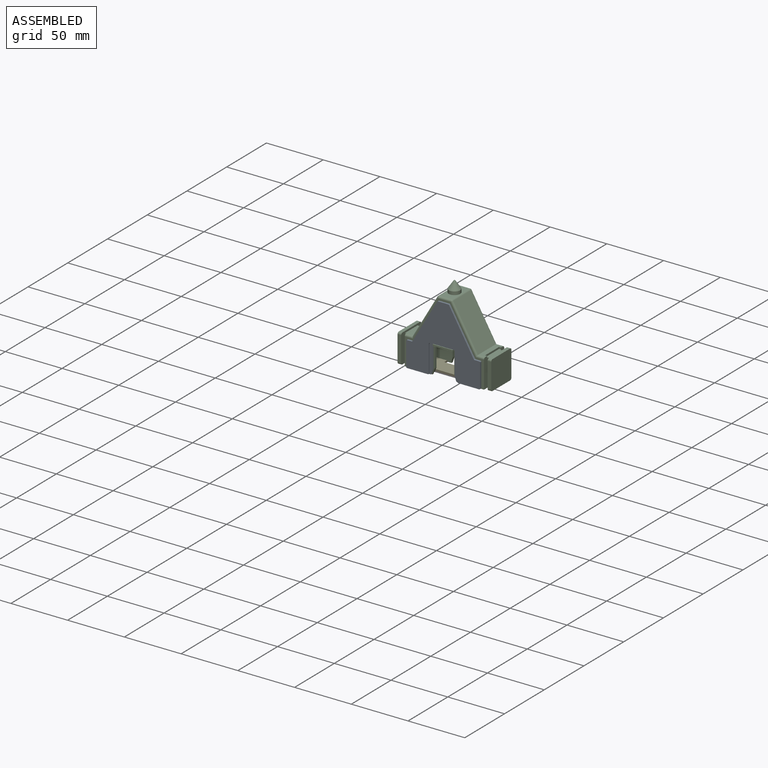
[diagram: assembled view]
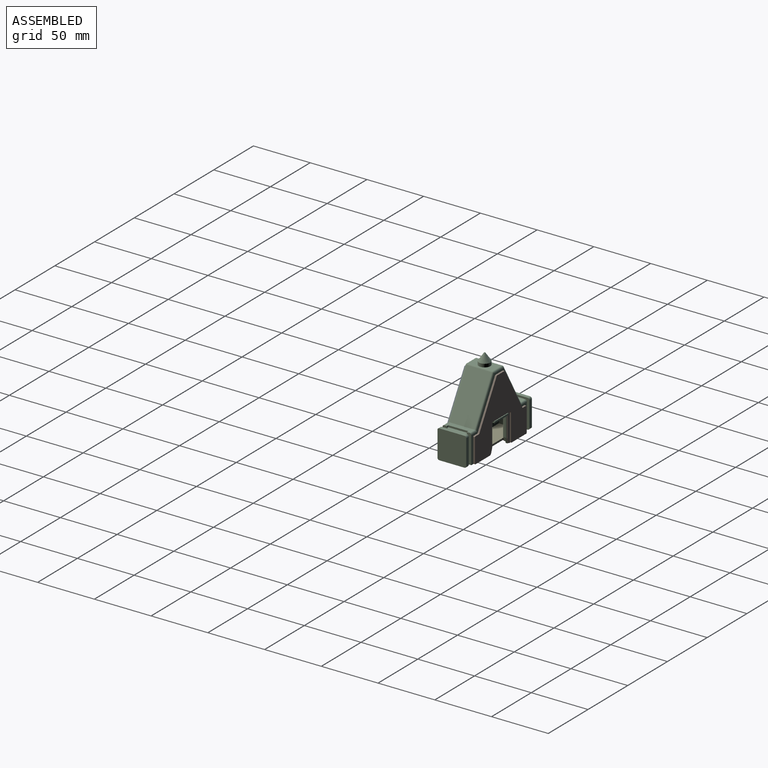
[diagram: assembled view, second angle]
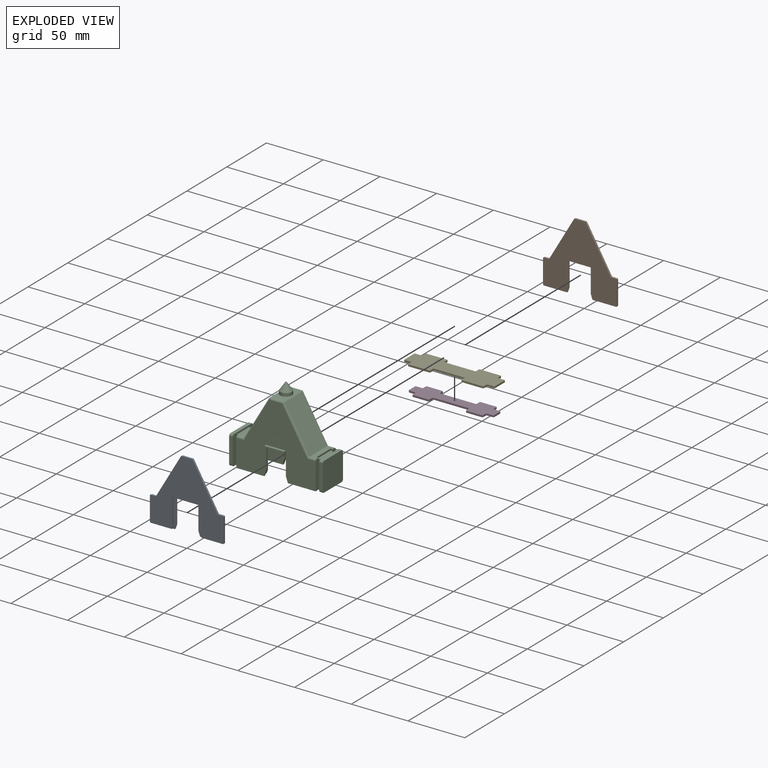
[diagram: exploded view]
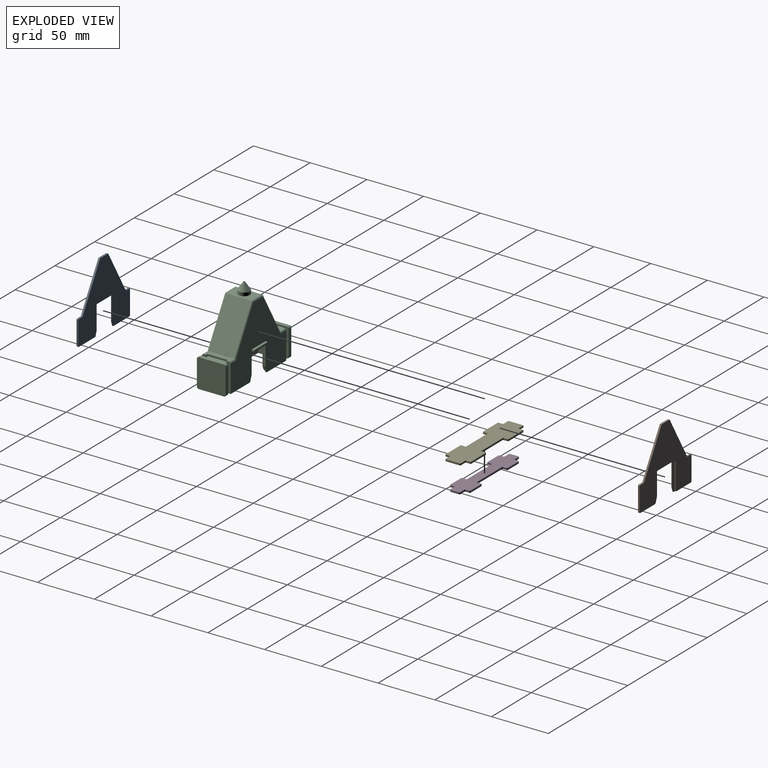
[diagram: exploded view, second angle]
ASSEMBLY  parts=5 mates=4
PART A: 38 faces, bbox 65.1x1.6x60.4 mm
  f0: plane 20.82x1.59mm, normal (-1,0,0), area 13.2mm2, adj f4,f14,f15,f20,f21,f26
  f1: plane 3.82x1.34mm, normal (-0.94,0,-0.33), area 2.6mm2, adj f15,f20,f26,f27
  f2: plane 20.2x1.59mm, normal (0,0,-1), area 30.3mm2, adj f14,f15,f20,f25,f27,f28
  f3: plane 3.82x1.34mm, normal (0.94,0,-0.33), area 2.6mm2, adj f15,f19,f36,f37
  f4: plane 18.99x1.59mm, normal (0,0,-1), area 30.1mm2, adj f0,f13,f14,f15
  f5: plane 20.76x1.59mm, normal (1,0,0), area 33mm2, adj f14,f15,f28,f29
  f6: plane 4.13x1.59mm, normal (0,0,1), area 6.6mm2, adj f14,f15,f29,f30
  f7: plane 37.34x21.78mm, normal (0.86,0,0.5), area 68.6mm2, adj f14,f15,f30,f31
  f8: plane 9.13x1.59mm, normal (0,0,1), area 14.5mm2, adj f14,f15,f31,f32
  f9: plane 37.34x21.78mm, normal (-0.86,0,0.5), area 68.6mm2, adj f14,f15,f32,f33
  f10: plane 4.13x1.59mm, normal (0,0,1), area 6.6mm2, adj f14,f15,f33,f34
  f11: plane 20.76x1.59mm, normal (-1,0,0), area 33mm2, adj f14,f15,f34,f35
  f12: plane 20.21x1.59mm, normal (0,0,-1), area 30.3mm2, adj f14,f15,f19,f24,f35,f36
  f13: plane 20.82x1.59mm, normal (1,0,0), area 13.2mm2, adj f4,f14,f15,f18,f19,f37
  f14: plane 65.12x60.39mm, normal (0,-1,0), area 2034.5mm2, adj f0,f2,f4,f5,f6,f7,f8,f9
  f15: plane 65.12x60.39mm, normal (0,1,0), area 2189.4mm2, adj f0,f1,f2,f3,f4,f5,f6,f7
  f16: cylinder r=1.59mm len=1.59mm, axis (0,-1,0), area 2.4mm2, adj f14,f17,f18,f19
  f17: plane 23.03x0.95mm, normal (1,0,0), area 21.9mm2, adj f14,f16,f19,f24
  f18: plane 1.63x0.95mm, normal (0,0,-1), area 1.5mm2, adj f13,f14,f16,f19
  f19: plane 25.38x3.98mm, normal (0,-1,0), area 77.6mm2, adj f3,f12,f13,f16,f17,f18,f24,f36
  f20: plane 25.38x3.96mm, normal (0,-1,0), area 77.3mm2, adj f0,f1,f2,f21,f22,f23,f25,f26
  f21: plane 1.61x0.95mm, normal (0,0,-1), area 1.5mm2, adj f0,f14,f20,f23
  f22: plane 23.03x0.95mm, normal (-1,0,0), area 21.9mm2, adj f14,f20,f23,f25
  f23: cylinder r=1.59mm len=1.59mm, axis (0,1,0), area 2.4mm2, adj f14,f20,f21,f22
  f24: cylinder r=0.76mm len=0.95mm, axis (0,-1,0), area 1.1mm2, adj f12,f14,f17,f19
  f25: cylinder r=0.76mm len=0.95mm, axis (0,1,0), area 1.1mm2, adj f2,f14,f20,f22
  f26: cylinder r=0.76mm len=0.64mm, axis (0,1,0), area 0.2mm2, adj f0,f1,f15,f20
  f27: cylinder r=0.76mm len=0.72mm, axis (0,1,0), area 0.6mm2, adj f1,f2,f15,f20
  f28: cylinder r=0.76mm len=1.59mm, axis (0,1,0), area 1.9mm2, adj f2,f5,f14,f15
  f29: cylinder r=0.76mm len=1.59mm, axis (0,1,0), area 1.9mm2, adj f5,f6,f14,f15
  f30: cylinder r=0.76mm len=1.59mm, axis (0,-1,0), area 1.3mm2, adj f6,f7,f14,f15
  f31: cylinder r=0.76mm len=1.59mm, axis (0,1,0), area 1.3mm2, adj f7,f8,f14,f15
  f32: cylinder r=0.76mm len=1.59mm, axis (0,1,0), area 1.3mm2, adj f8,f9,f14,f15
  f33: cylinder r=0.76mm len=1.59mm, axis (0,-1,0), area 1.3mm2, adj f9,f10,f14,f15
  f34: cylinder r=0.76mm len=1.59mm, axis (0,1,0), area 1.9mm2, adj f10,f11,f14,f15
  f35: cylinder r=0.76mm len=1.59mm, axis (0,1,0), area 1.9mm2, adj f11,f12,f14,f15
  f36: cylinder r=0.76mm len=0.72mm, axis (0,1,0), area 0.6mm2, adj f3,f12,f15,f19
  f37: cylinder r=0.76mm len=0.64mm, axis (0,1,0), area 0.2mm2, adj f3,f13,f15,f19
PART B: same geometry as A
PART C: 117 faces, bbox 82.6x29.8x73 mm
  f0: plane 25.4x4.76mm, normal (1,0,0), area 119mm2, adj f1,f4,f21,f36,f57,f85,f112
  f1: plane 22.23x6.35mm, normal (0,0,1), area 109.8mm2, adj f0,f29,f37,f81,f85,f112,f113,f114
  f2: plane 25.4x4.76mm, normal (-1,0,0), area 119mm2, adj f3,f19,f20,f32,f58,f83,f109
  f3: plane 22.23x6.35mm, normal (0,0,1), area 109.7mm2, adj f2,f26,f33,f83,f96,f109,f110,f111
  f4: plane 69.85x61.91mm, normal (0,-1,0), area 2471.9mm2, adj f0,f20,f21,f33,f48,f49,f60,f62
  f5: plane 64.77x59.37mm, normal (0,1,0), area 2137.9mm2, adj f11,f13,f18,f40,f41,f42,f43,f44
  f6: plane 64.77x59.37mm, normal (0,-1,0), area 2137.9mm2, adj f9,f15,f18,f40,f41,f42,f43,f44
  f7: plane 21.27x10.8mm, normal (1,0,0), area 229.6mm2, adj f10,f12,f41,f71
  f8: plane 21.27x10.8mm, normal (-1,0,0), area 229.6mm2, adj f14,f16,f40,f63
  f9: plane 21.27x4.76mm, normal (1,0,0), area 101.3mm2, adj f6,f10,f41,f71
  f10: plane 21.27x6.35mm, normal (0,-1,0), area 135.1mm2, adj f7,f9,f41,f71
  f11: plane 21.27x4.76mm, normal (1,0,0), area 101.3mm2, adj f5,f12,f41,f71
  f12: plane 21.27x6.35mm, normal (0,1,0), area 135.1mm2, adj f7,f11,f41,f71
  f13: plane 21.27x4.76mm, normal (-1,0,0), area 101.3mm2, adj f5,f14,f40,f63
  f14: plane 21.27x6.35mm, normal (0,1,0), area 135.1mm2, adj f8,f13,f40,f63
  f15: plane 21.27x4.76mm, normal (-1,0,0), area 101.3mm2, adj f6,f16,f40,f63
  f16: plane 21.27x6.35mm, normal (0,-1,0), area 135.1mm2, adj f8,f15,f40,f63
  f17: plane 22.23x3.18mm, normal (0,0,1), area 70.6mm2, adj f28,f39,f79,f80
  f18: plane 20.32x3.62mm, normal (0,0,-1), area 73.6mm2, adj f5,f6,f44,f54
  f19: plane 69.85x61.91mm, normal (0,1,0), area 2471.9mm2, adj f2,f20,f21,f37,f46,f47,f59,f61
  f20: plane 30.76x25.4mm, normal (0,0,-1), area 130.8mm2, adj f2,f4,f19,f27,f32,f33,f34,f35
  f21: plane 30.77x25.4mm, normal (0,0,-1), area 128mm2, adj f0,f4,f19,f28,f36,f37,f38,f39
  f22: plane 22.23x3.18mm, normal (0,-1,0), area 70.6mm2, adj f27,f35,f98,f105
  f23: plane 22.23x3.18mm, normal (0,1,0), area 70.6mm2, adj f27,f35,f97,f106
  f24: plane 22.23x3.18mm, normal (0,0,1), area 70.6mm2, adj f27,f35,f97,f98
  f25: plane 22.23x10.88mm, normal (0,0,1), area 160.7mm2, adj f51,f87,f88,f92,f93
  f26: plane 37.31x22.23mm, normal (-0.86,0,0.5), area 960mm2, adj f3,f86,f92,f95
  f27: plane 25.4x25.4mm, normal (-1,0,0), area 643mm2, adj f20,f22,f23,f24,f97,f98,f105,f106
  f28: plane 25.4x25.4mm, normal (1,0,0), area 643mm2, adj f17,f21,f30,f31,f79,f80,f107,f108
  f29: plane 37.31x22.23mm, normal (0.86,0,0.5), area 960mm2, adj f1,f82,f88,f89
  f30: plane 22.23x3.18mm, normal (0,-1,0), area 70.6mm2, adj f28,f39,f79,f108
  f31: plane 22.23x3.18mm, normal (0,1,0), area 70.6mm2, adj f28,f39,f80,f107
  f32: plane 23.81x3.18mm, normal (0,1,0), area 75.6mm2, adj f2,f20,f35,f58
  f33: plane 25.4x4.76mm, normal (-1,0,0), area 119mm2, adj f3,f4,f20,f34,f58,f96,f110
  f34: plane 23.81x3.18mm, normal (0,-1,0), area 75.6mm2, adj f20,f33,f35,f58
  f35: plane 25.4x25.4mm, normal (1,0,0), area 265mm2, adj f20,f22,f23,f24,f32,f34,f58,f97
  f36: plane 23.81x3.18mm, normal (0,-1,0), area 75.6mm2, adj f0,f21,f39,f57
  f37: plane 25.4x4.76mm, normal (1,0,0), area 119mm2, adj f1,f19,f21,f38,f57,f81,f113
  f38: plane 23.81x3.18mm, normal (0,1,0), area 75.6mm2, adj f21,f37,f39,f57
  f39: plane 25.4x25.4mm, normal (-1,0,0), area 265mm2, adj f17,f21,f30,f31,f36,f38,f57,f79
  f40: plane 20.32x11.62mm, normal (0,0,-1), area 175.6mm2, adj f5,f6,f8,f13,f14,f15,f16,f44
  f41: plane 20.32x11.62mm, normal (0,0,-1), area 175.6mm2, adj f5,f6,f7,f9,f10,f11,f12,f43
  f42: plane 20.32x3.62mm, normal (0,0,-1), area 73.6mm2, adj f5,f6,f43,f55
  f43: plane 38.1x22.23mm, normal (0.86,0,-0.5), area 896.3mm2, adj f5,f6,f41,f42
  f44: plane 38.1x22.23mm, normal (-0.86,0,-0.5), area 896.3mm2, adj f5,f6,f18,f40
  f45: plane 17.46x4.76mm, normal (0,0,-1), area 83.2mm2, adj f6,f46,f47,f102,f103,f116
  f46: plane 18.73x2.54mm, normal (-1,0,0), area 47.6mm2, adj f6,f19,f45,f61
  f47: plane 18.73x2.54mm, normal (1,0,0), area 47.6mm2, adj f6,f19,f45,f59
  f48: plane 18.73x2.54mm, normal (1,0,0), area 47.6mm2, adj f4,f5,f50,f60
  f49: plane 18.73x2.54mm, normal (-1,0,0), area 47.6mm2, adj f4,f5,f50,f62
  f50: plane 17.46x4.76mm, normal (0,0,-1), area 83.2mm2, adj f5,f48,f49,f99,f100,f115
  f51: cylinder r=5.08mm len=10.16mm, axis (0,0,1), area 91.9mm2, adj f25,f52
  f52: cone r=0.51mm half-angle=34.5deg, axis (0,0,-1), area 141.6mm2, adj f51,f53
  f53: plane 1.02x1.02mm, normal (0,0,1), area 0.8mm2, adj f52
  f54: plane 34.6x20.32mm, normal (1,0,-0.02), area 703.1mm2, adj f5,f6,f18,f56
  f55: plane 34.6x20.32mm, normal (-1,0,-0.02), area 703.1mm2, adj f5,f6,f42,f56
  f56: plane 20.32x1.33mm, normal (0,0,-1), area 27.1mm2, adj f5,f6,f54,f55
  f57: plane 17.65x4.95mm, normal (0,0,1), area 81.8mm2, adj f0,f36,f37,f38,f39,f112,f113,f114
  f58: plane 17.68x4.95mm, normal (0,0,1), area 81.8mm2, adj f2,f32,f33,f34,f35,f109,f110,f111
  f59: plane 5.08x2.54mm, normal (0.94,0,-0.33), area 11.9mm2, adj f6,f19,f20,f47,f71,f78
  f60: plane 5.08x2.54mm, normal (0.94,0,-0.33), area 11.5mm2, adj f4,f5,f20,f48,f71,f72
  f61: plane 5.08x2.54mm, normal (-0.94,0,-0.33), area 11.7mm2, adj f6,f19,f21,f46,f63,f65
  f62: plane 5.08x2.54mm, normal (-0.94,0,-0.33), area 11.5mm2, adj f4,f5,f21,f49,f63,f64
  f63: plane 30.04x22.74mm, normal (0,0,-1), area 101.4mm2, adj f5,f6,f8,f13,f14,f15,f16,f61
  f64: plane 23.71x1.59mm, normal (0,1,0), area 37.2mm2, adj f21,f62,f63,f66
  f65: plane 23.71x1.59mm, normal (0,-1,0), area 37.2mm2, adj f21,f61,f63,f70
  f66: plane 4.55x1.59mm, normal (-1,0,0), area 7.2mm2, adj f21,f63,f64,f67
  f67: plane 6.33x1.59mm, normal (0,1,0), area 10mm2, adj f21,f63,f66,f68
  f68: plane 13.69x1.59mm, normal (-1,0,0), area 21.7mm2, adj f21,f63,f67,f69
  f69: plane 6.33x1.59mm, normal (0,-1,0), area 10mm2, adj f21,f63,f68,f70
  f70: plane 4.51x1.59mm, normal (-1,0,0), area 7.2mm2, adj f21,f63,f65,f69
  f71: plane 29.99x22.64mm, normal (0,0,-1), area 98.5mm2, adj f5,f6,f7,f9,f10,f11,f12,f59
  f72: plane 23.92x1.59mm, normal (0,1,0), area 37.5mm2, adj f20,f60,f71,f73
  f73: plane 4.55x1.59mm, normal (1,0,0), area 7.2mm2, adj f20,f71,f72,f74
  f74: plane 6.08x1.59mm, normal (0,1,0), area 9.6mm2, adj f20,f71,f73,f75
  f75: plane 13.69x1.59mm, normal (1,0,0), area 21.7mm2, adj f20,f71,f74,f76
  f76: plane 6.52x1.59mm, normal (0,-1,0), area 10.4mm2, adj f20,f71,f75,f77
  f77: plane 4.41x1.59mm, normal (1,0,0), area 7mm2, adj f20,f71,f76,f78
  f78: plane 23.47x1.59mm, normal (0,-1,0), area 36.8mm2, adj f20,f59,f71,f77
  f79: cylinder r=1.59mm len=3.18mm, axis (1,0,0), area 7.9mm2, adj f17,f28,f30,f39
  f80: cylinder r=1.59mm len=3.18mm, axis (-1,0,0), area 7.9mm2, adj f17,f28,f31,f39
  f81: cylinder r=1.59mm len=7.26mm, axis (-1,0,0), area 16.7mm2, adj f1,f19,f37,f82
  f82: cylinder r=1.59mm len=38.9mm, axis (-0.5,0,0.86), area 108.5mm2, adj f19,f29,f81,f84
  f83: cylinder r=1.59mm len=7.26mm, axis (-1,0,0), area 16.7mm2, adj f2,f3,f19,f86
  f84: sphere r=1.59mm, area 2.6mm2, adj f82,f87,f88
  f85: cylinder r=1.59mm len=7.26mm, axis (1,0,0), area 16.7mm2, adj f0,f1,f4,f89
  f86: cylinder r=1.59mm len=38.9mm, axis (-0.5,0,-0.86), area 108.5mm2, adj f19,f26,f83,f90
  f87: cylinder r=1.59mm len=10.88mm, axis (-1,0,0), area 27.1mm2, adj f19,f25,f84,f90
  f88: cylinder r=1.59mm len=22.23mm, axis (0,1,0), area 36.8mm2, adj f25,f29,f84,f91
  f89: cylinder r=1.59mm len=38.9mm, axis (0.5,0,-0.86), area 108.5mm2, adj f4,f29,f85,f91
  f90: sphere r=1.59mm, area 2.6mm2, adj f86,f87,f92
  f91: sphere r=1.59mm, area 2.6mm2, adj f88,f89,f93
  f92: cylinder r=1.59mm len=22.23mm, axis (0,1,0), area 36.8mm2, adj f25,f26,f90,f94
  f93: cylinder r=1.59mm len=10.88mm, axis (1,0,0), area 27.1mm2, adj f4,f25,f91,f94
  f94: sphere r=1.59mm, area 2.6mm2, adj f92,f93,f95
  f95: cylinder r=1.59mm len=38.9mm, axis (0.5,0,0.86), area 108.5mm2, adj f4,f26,f94,f96
  f96: cylinder r=1.59mm len=7.26mm, axis (1,0,0), area 16.7mm2, adj f3,f4,f33,f95
  f97: cylinder r=1.59mm len=3.18mm, axis (-1,0,0), area 7.9mm2, adj f23,f24,f27,f35
  f98: cylinder r=1.59mm len=3.18mm, axis (1,0,0), area 7.9mm2, adj f22,f24,f27,f35
  f99: plane 2.22x1.59mm, normal (-1,0,0), area 3.5mm2, adj f4,f50,f101,f115
  f100: plane 2.22x1.59mm, normal (1,0,0), area 3.5mm2, adj f4,f50,f101,f115
  f101: plane 17.46x2.22mm, normal (0,0,1), area 38.8mm2, adj f4,f99,f100,f115
  f102: plane 2.22x1.59mm, normal (1,0,0), area 3.5mm2, adj f19,f45,f104,f116
  f103: plane 2.22x1.59mm, normal (-1,0,0), area 3.5mm2, adj f19,f45,f104,f116
  f104: plane 17.46x2.22mm, normal (0,0,1), area 38.8mm2, adj f19,f102,f103,f116
  f105: cylinder r=1.59mm len=3.18mm, axis (-1,0,0), area 7.9mm2, adj f20,f22,f27,f35
  f106: cylinder r=1.59mm len=3.18mm, axis (1,0,0), area 7.9mm2, adj f20,f23,f27,f35
  f107: cylinder r=1.59mm len=3.18mm, axis (1,0,0), area 7.9mm2, adj f21,f28,f31,f39
  f108: cylinder r=1.59mm len=3.18mm, axis (-1,0,0), area 7.9mm2, adj f21,f28,f30,f39
  f109: plane 1.78x1.59mm, normal (0,-1,0), area 2.8mm2, adj f2,f3,f58,f111
  f110: plane 1.78x1.59mm, normal (0,1,0), area 2.8mm2, adj f3,f33,f58,f111
  f111: plane 17.68x1.59mm, normal (-1,0,0), area 28.1mm2, adj f3,f58,f109,f110
  f112: plane 1.78x1.59mm, normal (0,1,0), area 2.8mm2, adj f0,f1,f57,f114
  f113: plane 1.78x1.59mm, normal (0,-1,0), area 2.8mm2, adj f1,f37,f57,f114
  f114: plane 17.65x1.59mm, normal (1,0,0), area 28mm2, adj f1,f57,f112,f113
  f115: plane 17.46x1.59mm, normal (0,-1,0), area 27.7mm2, adj f50,f99,f100,f101
  f116: plane 17.46x1.59mm, normal (0,1,0), area 27.7mm2, adj f45,f102,f103,f104
PART D: 42 faces, bbox 75.1x18.1x1.6 mm
  f0: plane 3.16x1.59mm, normal (1,0,0), area 5mm2, adj f20,f21,f22,f41
  f1: plane 30.66x1.59mm, normal (0,-1,0), area 48.7mm2, adj f20,f21,f22,f23
  f2: plane 3.05x1.59mm, normal (-1,0,0), area 4.8mm2, adj f20,f21,f23,f24
  f3: plane 13.42x1.59mm, normal (0,-1,0), area 21.3mm2, adj f20,f21,f24,f25
  f4: plane 3.06x1.59mm, normal (1,0,0), area 4.9mm2, adj f20,f21,f25,f26
  f5: plane 4.97x1.59mm, normal (0,-1,0), area 7.9mm2, adj f20,f21,f26,f27
  f6: plane 7.26x1.59mm, normal (1,0,0), area 11.5mm2, adj f20,f21,f27,f28
  f7: plane 4.94x1.59mm, normal (0,1,0), area 7.8mm2, adj f20,f21,f28,f29
  f8: plane 3.1x1.59mm, normal (1,0,0), area 4.9mm2, adj f20,f21,f29,f30
  f9: plane 13.46x1.59mm, normal (0,1,0), area 21.4mm2, adj f20,f21,f30,f31
  f10: plane 3.1x1.59mm, normal (-1,0,0), area 4.9mm2, adj f20,f21,f31,f32
  f11: plane 30.64x1.59mm, normal (0,1,0), area 48.6mm2, adj f20,f21,f32,f33
  f12: plane 2.88x1.59mm, normal (1,0,0), area 4.6mm2, adj f20,f21,f33,f34
  f13: plane 13.45x1.59mm, normal (0,1,0), area 21.4mm2, adj f20,f21,f34,f35
  f14: plane 2.88x1.59mm, normal (-1,0,0), area 4.6mm2, adj f20,f21,f35,f36
  f15: plane 4.94x1.59mm, normal (0,1,0), area 7.8mm2, adj f20,f21,f36,f37
  f16: plane 7.27x1.59mm, normal (-1,0,0), area 11.5mm2, adj f20,f21,f37,f38
  f17: plane 5x1.59mm, normal (0,-1,0), area 7.9mm2, adj f20,f21,f38,f39
  f18: plane 3.16x1.59mm, normal (-1,0,0), area 5mm2, adj f20,f21,f39,f40
  f19: plane 13.39x1.59mm, normal (0,-1,0), area 21.3mm2, adj f20,f21,f40,f41
  f20: plane 75.05x18.1mm, normal (0,0,1), area 933mm2, adj f0,f1,f2,f3,f4,f5,f6,f7
  f21: plane 75.05x18.1mm, normal (0,0,-1), area 933mm2, adj f0,f1,f2,f3,f4,f5,f6,f7
  f22: cylinder r=0.76mm len=1.59mm, axis (0,0,1), area 1.9mm2, adj f0,f1,f20,f21
  f23: cylinder r=0.76mm len=1.59mm, axis (0,0,1), area 1.9mm2, adj f1,f2,f20,f21
  f24: cylinder r=0.76mm len=1.59mm, axis (0,0,-1), area 1.9mm2, adj f2,f3,f20,f21
  f25: cylinder r=0.76mm len=1.59mm, axis (0,0,-1), area 1.9mm2, adj f3,f4,f20,f21
  f26: cylinder r=0.76mm len=1.59mm, axis (0,0,1), area 1.9mm2, adj f4,f5,f20,f21
  f27: cylinder r=0.76mm len=1.59mm, axis (0,0,-1), area 1.9mm2, adj f5,f6,f20,f21
  f28: cylinder r=0.76mm len=1.59mm, axis (0,0,-1), area 1.9mm2, adj f6,f7,f20,f21
  f29: cylinder r=0.76mm len=1.59mm, axis (0,0,1), area 1.9mm2, adj f7,f8,f20,f21
  f30: cylinder r=0.76mm len=1.59mm, axis (0,0,-1), area 1.9mm2, adj f8,f9,f20,f21
  f31: cylinder r=0.76mm len=1.59mm, axis (0,0,-1), area 1.9mm2, adj f9,f10,f20,f21
  f32: cylinder r=0.76mm len=1.59mm, axis (0,0,1), area 1.9mm2, adj f10,f11,f20,f21
  f33: cylinder r=0.76mm len=1.59mm, axis (0,0,1), area 1.9mm2, adj f11,f12,f20,f21
  f34: cylinder r=0.76mm len=1.59mm, axis (0,0,-1), area 1.9mm2, adj f12,f13,f20,f21
  f35: cylinder r=0.76mm len=1.59mm, axis (0,0,-1), area 1.9mm2, adj f13,f14,f20,f21
  f36: cylinder r=0.76mm len=1.59mm, axis (0,0,1), area 1.9mm2, adj f14,f15,f20,f21
  f37: cylinder r=0.76mm len=1.59mm, axis (0,0,-1), area 1.9mm2, adj f15,f16,f20,f21
  f38: cylinder r=0.76mm len=1.59mm, axis (0,0,-1), area 1.9mm2, adj f16,f17,f20,f21
  f39: cylinder r=0.76mm len=1.59mm, axis (0,0,1), area 1.9mm2, adj f17,f18,f20,f21
  f40: cylinder r=0.76mm len=1.59mm, axis (0,0,-1), area 1.9mm2, adj f18,f19,f20,f21
  f41: cylinder r=0.76mm len=1.59mm, axis (0,0,-1), area 1.9mm2, adj f0,f19,f20,f21
PART E: 124 faces, bbox 79.7x22.6x2.3 mm
  f0: plane 79.67x22.57mm, normal (0,0,1), area 276.1mm2, adj f1,f2,f3,f4,f5,f6,f7,f8
  f1: plane 3.53x1.59mm, normal (1,0,0), area 5.6mm2, adj f0,f21,f104,f123
  f2: plane 18.44x1.59mm, normal (0,1,0), area 29.3mm2, adj f0,f21,f104,f105
  f3: plane 3.53x1.59mm, normal (-1,0,0), area 5.6mm2, adj f0,f21,f105,f106
  f4: plane 5.51x1.59mm, normal (0,1,0), area 8.7mm2, adj f0,f21,f106,f107
  f5: plane 12.37x1.59mm, normal (-1,0,0), area 19.6mm2, adj f0,f21,f107,f108
  f6: plane 5.51x1.59mm, normal (0,-1,0), area 8.7mm2, adj f0,f21,f108,f109
  f7: plane 3.53x1.59mm, normal (-1,0,0), area 5.6mm2, adj f0,f21,f109,f110
  f8: plane 18.45x1.59mm, normal (0,-1,0), area 29.3mm2, adj f0,f21,f110,f111
  f9: plane 3.53x1.59mm, normal (1,0,0), area 5.6mm2, adj f0,f21,f111,f112
  f10: plane 26.65x1.59mm, normal (0,-1,0), area 42.3mm2, adj f0,f21,f112,f113
  f11: plane 3.53x1.59mm, normal (-1,0,0), area 5.6mm2, adj f0,f21,f113,f114
  f12: plane 18.45x1.59mm, normal (0,-1,0), area 29.3mm2, adj f0,f21,f114,f115
  f13: plane 3.53x1.59mm, normal (1,0,0), area 5.6mm2, adj f0,f21,f115,f116
  f14: plane 5.51x1.59mm, normal (0,-1,0), area 8.7mm2, adj f0,f21,f116,f117
  f15: plane 12.37x1.59mm, normal (1,0,0), area 19.6mm2, adj f0,f21,f117,f118
  f16: plane 5.51x1.59mm, normal (0,1,0), area 8.7mm2, adj f0,f21,f118,f119
  f17: plane 3.53x1.59mm, normal (1,0,0), area 5.6mm2, adj f0,f21,f119,f120
  f18: plane 18.45x1.59mm, normal (0,1,0), area 29.3mm2, adj f0,f21,f120,f121
  f19: plane 3.53x1.59mm, normal (-1,0,0), area 5.6mm2, adj f0,f21,f121,f122
  f20: plane 26.67x1.59mm, normal (0,1,0), area 42.3mm2, adj f0,f21,f122,f123
  f21: plane 79.67x22.57mm, normal (0,0,-1), area 1420.2mm2, adj f1,f2,f3,f4,f5,f6,f7,f8
  f22: plane 15.9x0.76mm, normal (0,1,0), area 12.1mm2, adj f0,f62,f84,f103
  f23: plane 3.52x0.76mm, normal (-1,0,0), area 2.7mm2, adj f0,f62,f84,f85
  f24: plane 5.51x0.76mm, normal (0,1,0), area 4.2mm2, adj f0,f62,f85,f86
  f25: plane 9.83x0.76mm, normal (-1,0,0), area 7.5mm2, adj f0,f62,f86,f87
  f26: plane 5.51x0.76mm, normal (0,-1,0), area 4.2mm2, adj f0,f62,f87,f88
  f27: plane 3.54x0.76mm, normal (-1,0,0), area 2.7mm2, adj f0,f62,f88,f89
  f28: plane 15.91x0.76mm, normal (0,-1,0), area 12.1mm2, adj f0,f62,f89,f90
  f29: plane 3.53x0.76mm, normal (1,0,0), area 2.7mm2, adj f0,f62,f90,f91
  f30: plane 29.19x0.76mm, normal (0,-1,0), area 22.2mm2, adj f0,f62,f91,f92
  f31: plane 3.53x0.76mm, normal (-1,0,0), area 2.7mm2, adj f0,f62,f92,f93
  f32: plane 15.91x0.76mm, normal (0,-1,0), area 12.1mm2, adj f0,f62,f93,f94
  f33: plane 3.53x0.76mm, normal (1,0,0), area 2.7mm2, adj f0,f62,f94,f95
  f34: plane 5.51x0.76mm, normal (0,-1,0), area 4.2mm2, adj f0,f62,f95,f96
  f35: plane 9.83x0.76mm, normal (1,0,0), area 7.5mm2, adj f0,f62,f96,f97
  f36: plane 5.51x0.76mm, normal (0,1,0), area 4.2mm2, adj f0,f62,f97,f98
  f37: plane 3.53x0.76mm, normal (1,0,0), area 2.7mm2, adj f0,f62,f98,f99
  f38: plane 15.91x0.76mm, normal (0,1,0), area 12.1mm2, adj f0,f62,f99,f100
  f39: plane 3.53x0.76mm, normal (-1,0,0), area 2.7mm2, adj f0,f62,f100,f101
  f40: plane 29.21x0.76mm, normal (0,1,0), area 22.3mm2, adj f0,f62,f101,f102
  f41: plane 3.52x0.76mm, normal (1,0,0), area 2.7mm2, adj f62,f63,f64,f83
  f42: plane 14.38x0.76mm, normal (0,-1,0), area 11mm2, adj f62,f63,f64,f65
  f43: plane 3.54x0.76mm, normal (-1,0,0), area 2.7mm2, adj f62,f63,f65,f66
  f44: plane 30.74x0.76mm, normal (0,-1,0), area 23.4mm2, adj f62,f63,f66,f67
  f45: plane 3.53x0.76mm, normal (1,0,0), area 2.7mm2, adj f62,f63,f67,f68
  f46: plane 14.39x0.76mm, normal (0,-1,0), area 11mm2, adj f62,f63,f68,f69
  f47: plane 3.53x0.76mm, normal (-1,0,0), area 2.7mm2, adj f62,f63,f69,f70
  f48: plane 5.51x0.76mm, normal (0,-1,0), area 4.2mm2, adj f62,f63,f70,f71
  f49: plane 8.31x0.76mm, normal (-1,0,0), area 6.3mm2, adj f62,f63,f71,f72
  f50: plane 5.51x0.76mm, normal (0,1,0), area 4.2mm2, adj f62,f63,f72,f73
  f51: plane 3.53x0.76mm, normal (-1,0,0), area 2.7mm2, adj f62,f63,f73,f74
  f52: plane 14.39x0.76mm, normal (0,1,0), area 11mm2, adj f62,f63,f74,f75
  f53: plane 3.53x0.76mm, normal (1,0,0), area 2.7mm2, adj f62,f63,f75,f76
  f54: plane 30.71x0.76mm, normal (0,1,0), area 23.4mm2, adj f62,f63,f76,f77
  f55: plane 3.52x0.76mm, normal (-1,0,0), area 2.7mm2, adj f62,f63,f77,f78
  f56: plane 14.39x0.76mm, normal (0,1,0), area 11mm2, adj f62,f63,f78,f79
  f57: plane 3.54x0.76mm, normal (1,0,0), area 2.7mm2, adj f62,f63,f79,f80
  f58: plane 5.51x0.76mm, normal (0,1,0), area 4.2mm2, adj f62,f63,f80,f81
  f59: plane 8.31x0.76mm, normal (1,0,0), area 6.3mm2, adj f62,f63,f81,f82
  f60: plane 5.51x0.76mm, normal (0,-1,0), area 4.2mm2, adj f62,f63,f82,f83
  f61: plane 3.54x0.76mm, normal (1,0,0), area 2.7mm2, adj f0,f62,f102,f103
  f62: plane 77.13x20.02mm, normal (0,0,1), area 159.4mm2, adj f22,f23,f24,f25,f26,f27,f28,f29
  f63: plane 75.6x18.49mm, normal (0,0,1), area 984.6mm2, adj f41,f42,f43,f44,f45,f46,f47,f48
  f64: cylinder r=0.51mm len=0.76mm, axis (0,0,1), area 0.6mm2, adj f41,f42,f62,f63
  f65: cylinder r=0.51mm len=0.76mm, axis (0,0,1), area 0.6mm2, adj f42,f43,f62,f63
  f66: cylinder r=0.51mm len=0.76mm, axis (0,0,-1), area 0.6mm2, adj f43,f44,f62,f63
  f67: cylinder r=0.51mm len=0.76mm, axis (0,0,-1), area 0.6mm2, adj f44,f45,f62,f63
  f68: cylinder r=0.51mm len=0.76mm, axis (0,0,1), area 0.6mm2, adj f45,f46,f62,f63
  f69: cylinder r=0.51mm len=0.76mm, axis (0,0,1), area 0.6mm2, adj f46,f47,f62,f63
  f70: cylinder r=0.51mm len=0.76mm, axis (0,0,-1), area 0.6mm2, adj f47,f48,f62,f63
  f71: cylinder r=0.51mm len=0.76mm, axis (0,0,1), area 0.6mm2, adj f48,f49,f62,f63
  f72: cylinder r=0.51mm len=0.76mm, axis (0,0,1), area 0.6mm2, adj f49,f50,f62,f63
  f73: cylinder r=0.51mm len=0.76mm, axis (0,0,-1), area 0.6mm2, adj f50,f51,f62,f63
  f74: cylinder r=0.51mm len=0.76mm, axis (0,0,1), area 0.6mm2, adj f51,f52,f62,f63
  f75: cylinder r=0.51mm len=0.76mm, axis (0,0,1), area 0.6mm2, adj f52,f53,f62,f63
  f76: cylinder r=0.51mm len=0.76mm, axis (0,0,-1), area 0.6mm2, adj f53,f54,f62,f63
  f77: cylinder r=0.51mm len=0.76mm, axis (0,0,-1), area 0.6mm2, adj f54,f55,f62,f63
  f78: cylinder r=0.51mm len=0.76mm, axis (0,0,1), area 0.6mm2, adj f55,f56,f62,f63
  f79: cylinder r=0.51mm len=0.76mm, axis (0,0,1), area 0.6mm2, adj f56,f57,f62,f63
  f80: cylinder r=0.51mm len=0.76mm, axis (0,0,-1), area 0.6mm2, adj f57,f58,f62,f63
  f81: cylinder r=0.51mm len=0.76mm, axis (0,0,1), area 0.6mm2, adj f58,f59,f62,f63
  f82: cylinder r=0.51mm len=0.76mm, axis (0,0,1), area 0.6mm2, adj f59,f60,f62,f63
  f83: cylinder r=0.51mm len=0.76mm, axis (0,0,-1), area 0.6mm2, adj f41,f60,f62,f63
  f84: cylinder r=0.51mm len=0.76mm, axis (0,0,-1), area 0.6mm2, adj f0,f22,f23,f62
  f85: cylinder r=0.51mm len=0.76mm, axis (0,0,1), area 0.6mm2, adj f0,f23,f24,f62
  f86: cylinder r=0.51mm len=0.76mm, axis (0,0,-1), area 0.6mm2, adj f0,f24,f25,f62
  f87: cylinder r=0.51mm len=0.76mm, axis (0,0,-1), area 0.6mm2, adj f0,f25,f26,f62
  f88: cylinder r=0.51mm len=0.76mm, axis (0,0,1), area 0.6mm2, adj f0,f26,f27,f62
  f89: cylinder r=0.51mm len=0.76mm, axis (0,0,-1), area 0.6mm2, adj f0,f27,f28,f62
  f90: cylinder r=0.51mm len=0.76mm, axis (0,0,-1), area 0.6mm2, adj f0,f28,f29,f62
  f91: cylinder r=0.51mm len=0.76mm, axis (0,0,1), area 0.6mm2, adj f0,f29,f30,f62
  f92: cylinder r=0.51mm len=0.76mm, axis (0,0,1), area 0.6mm2, adj f0,f30,f31,f62
  f93: cylinder r=0.51mm len=0.76mm, axis (0,0,-1), area 0.6mm2, adj f0,f31,f32,f62
  f94: cylinder r=0.51mm len=0.76mm, axis (0,0,-1), area 0.6mm2, adj f0,f32,f33,f62
  f95: cylinder r=0.51mm len=0.76mm, axis (0,0,1), area 0.6mm2, adj f0,f33,f34,f62
  f96: cylinder r=0.51mm len=0.76mm, axis (0,0,-1), area 0.6mm2, adj f0,f34,f35,f62
  f97: cylinder r=0.51mm len=0.76mm, axis (0,0,-1), area 0.6mm2, adj f0,f35,f36,f62
  f98: cylinder r=0.51mm len=0.76mm, axis (0,0,1), area 0.6mm2, adj f0,f36,f37,f62
  f99: cylinder r=0.51mm len=0.76mm, axis (0,0,-1), area 0.6mm2, adj f0,f37,f38,f62
  f100: cylinder r=0.51mm len=0.76mm, axis (0,0,-1), area 0.6mm2, adj f0,f38,f39,f62
  f101: cylinder r=0.51mm len=0.76mm, axis (0,0,1), area 0.6mm2, adj f0,f39,f40,f62
  f102: cylinder r=0.51mm len=0.76mm, axis (0,0,1), area 0.6mm2, adj f0,f40,f61,f62
  f103: cylinder r=0.51mm len=0.76mm, axis (0,0,-1), area 0.6mm2, adj f0,f22,f61,f62
  f104: cylinder r=0.51mm len=1.59mm, axis (0,0,-1), area 1.3mm2, adj f0,f1,f2,f21
  f105: cylinder r=0.51mm len=1.59mm, axis (0,0,-1), area 1.3mm2, adj f0,f2,f3,f21
  f106: cylinder r=0.51mm len=1.59mm, axis (0,0,1), area 1.3mm2, adj f0,f3,f4,f21
  f107: cylinder r=0.51mm len=1.59mm, axis (0,0,-1), area 1.3mm2, adj f0,f4,f5,f21
  f108: cylinder r=0.51mm len=1.59mm, axis (0,0,-1), area 1.3mm2, adj f0,f5,f6,f21
  f109: cylinder r=0.51mm len=1.59mm, axis (0,0,1), area 1.3mm2, adj f0,f6,f7,f21
  f110: cylinder r=0.51mm len=1.59mm, axis (0,0,-1), area 1.3mm2, adj f0,f7,f8,f21
  f111: cylinder r=0.51mm len=1.59mm, axis (0,0,-1), area 1.3mm2, adj f0,f8,f9,f21
  f112: cylinder r=0.51mm len=1.59mm, axis (0,0,1), area 1.3mm2, adj f0,f9,f10,f21
  f113: cylinder r=0.51mm len=1.59mm, axis (0,0,1), area 1.3mm2, adj f0,f10,f11,f21
  f114: cylinder r=0.51mm len=1.59mm, axis (0,0,-1), area 1.3mm2, adj f0,f11,f12,f21
  f115: cylinder r=0.51mm len=1.59mm, axis (0,0,-1), area 1.3mm2, adj f0,f12,f13,f21
  f116: cylinder r=0.51mm len=1.59mm, axis (0,0,1), area 1.3mm2, adj f0,f13,f14,f21
  f117: cylinder r=0.51mm len=1.59mm, axis (0,0,-1), area 1.3mm2, adj f0,f14,f15,f21
  f118: cylinder r=0.51mm len=1.59mm, axis (0,0,-1), area 1.3mm2, adj f0,f15,f16,f21
  f119: cylinder r=0.51mm len=1.59mm, axis (0,0,1), area 1.3mm2, adj f0,f16,f17,f21
  f120: cylinder r=0.51mm len=1.59mm, axis (0,0,-1), area 1.3mm2, adj f0,f17,f18,f21
  f121: cylinder r=0.51mm len=1.59mm, axis (0,0,-1), area 1.3mm2, adj f0,f18,f19,f21
  f122: cylinder r=0.51mm len=1.59mm, axis (0,0,1), area 1.3mm2, adj f0,f19,f20,f21
  f123: cylinder r=0.51mm len=1.59mm, axis (0,0,1), area 1.3mm2, adj f0,f1,f20,f21
PLACE A t=(-32.15,-1.31,-26.73)mm
PLACE B rot(axis=(0,0,1),180deg) t=(-32.14,24.09,-26.73)mm
PLACE C t=(-32.14,11.39,-21.06)mm fixed
PLACE D rot(axis=(1,0,0),0deg) t=(-31.95,11.47,-48.05)mm
PLACE E rot(axis=(1,0,0),180deg) t=(-31.9,11.2,-44.87)mm
MATE fastened B.f15 <-> C.f19  axis (0,-1,0) through (-32.14,24.09,-21.06)mm
MATE fastened A.f15 <-> C.f4  axis (0,1,0) through (-32.14,-1.31,-21.06)mm
MATE fastened E.f63 <-> D.f20  axis (0,0,-1) through (-31.98,11.34,-46.46)mm
MATE fastened C.f63 <-> E.f21  axis (0,0,-1) through (7.85,11.35,-44.87)mm
